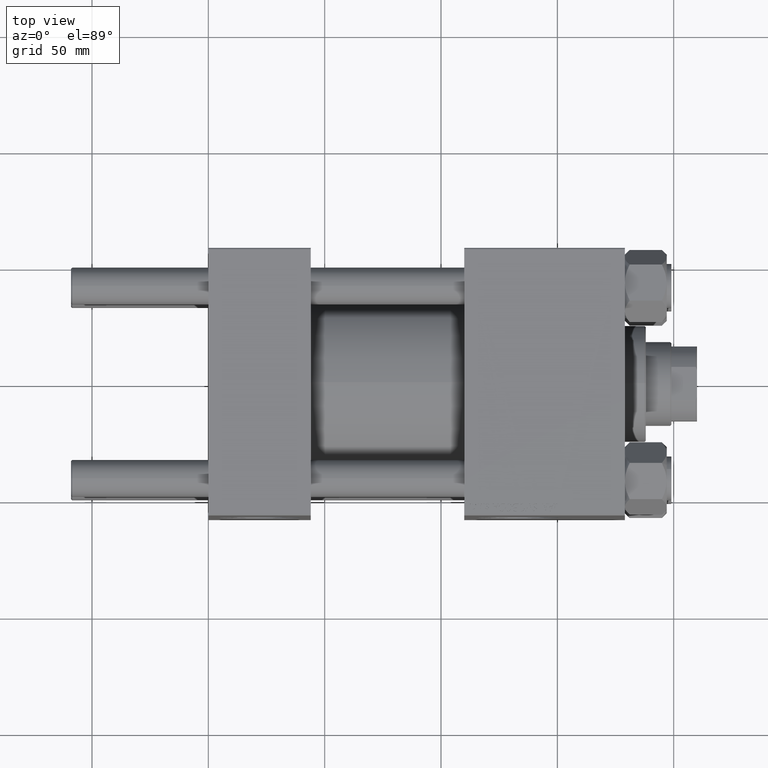
[diagram: clean part render]
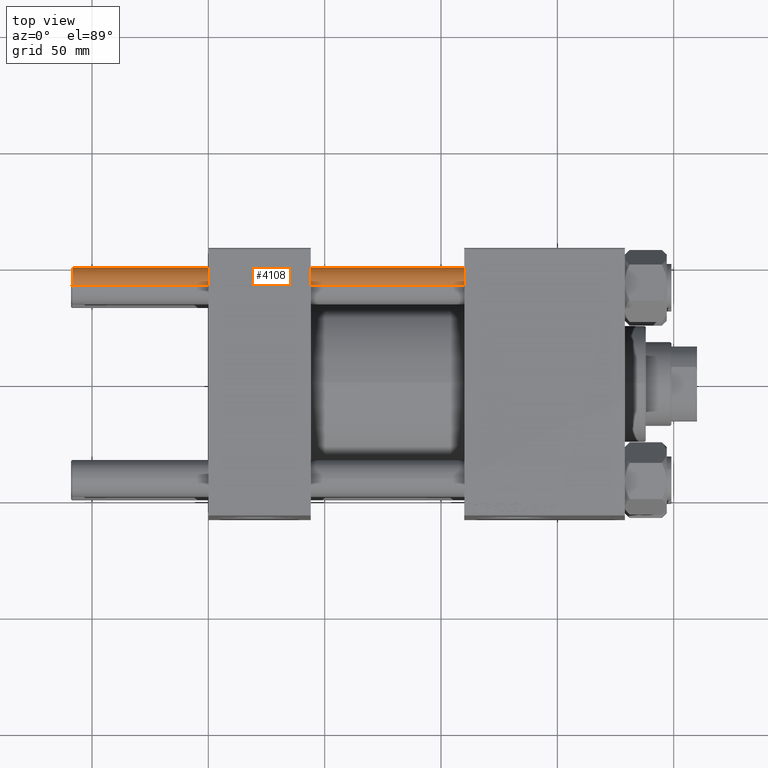
[diagram: same view with one face highlighted and labeled with its STEP entity id]
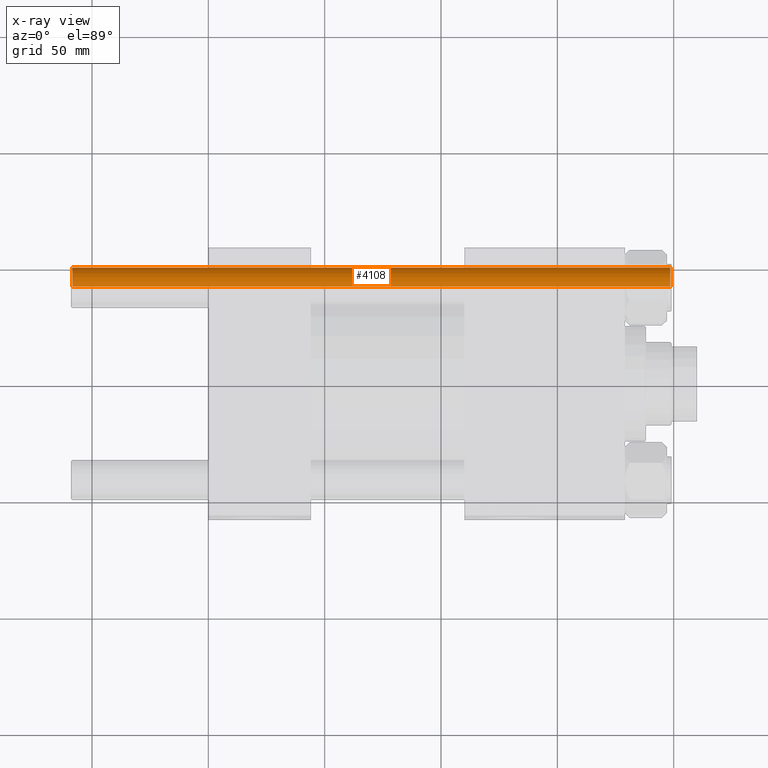
[diagram: x-ray of the same camera — body ghosted, the highlighted face saturated]
A machine part, top view. The second image highlights one B-rep face of the part: STEP entity #4108.
The next image is the same camera in x-ray: the body ghosted, the highlighted face saturated — about 0% of this face is hidden behind the body in this view.
In plain terms, the highlighted cylindrical surface (edge-blend (fillet) strip) has radius 8 mm, axis along (-1, -0, -0).
Its self-contained STEP definition (entity closure, byte-faithful):
#591 = DIRECTION ( 'NONE',  ( -0.000000000000000000, -0.000000000000000000, -1.000000000000000000 ) ) ;
#1505 = CARTESIAN_POINT ( 'NONE',  ( 8.000000000000000000, 9.797174393178825657E-16, 0.4999999999999449329 ) ) ;
#2602 = ORIENTED_EDGE ( 'NONE', *, *, #22292, .T. ) ;
#2763 = DIRECTION ( 'NONE',  ( 0.000000000000000000, 0.000000000000000000, -1.000000000000000000 ) ) ;
#4108 = ADVANCED_FACE ( 'NONE', ( #39374 ), #19978, .T. ) ;
#4132 = VECTOR ( 'NONE', #22811, 1000.000000000000000 ) ;
#5168 = DIRECTION ( 'NONE',  ( -1.000000000000000000, 0.000000000000000000, 0.000000000000000000 ) ) ;
#6074 = CARTESIAN_POINT ( 'NONE',  ( -8.000000000000000000, 0.000000000000000000, 258.0000000000000000 ) ) ;
#6361 = EDGE_CURVE ( 'NONE', #44144, #11092, #39335, .T. ) ;
#7006 = DIRECTION ( 'NONE',  ( 1.000000000000000000, 0.000000000000000000, 0.000000000000000000 ) ) ;
#8799 = VERTEX_POINT ( 'NONE', #1505 ) ;
#8853 = EDGE_CURVE ( 'NONE', #44144, #27923, #31282, .T. ) ;
#10908 = CARTESIAN_POINT ( 'NONE',  ( 0.000000000000000000, 0.000000000000000000, 257.4999999999999432 ) ) ;
#11092 = VERTEX_POINT ( 'NONE', #34333 ) ;
#11241 = CIRCLE ( 'NONE', #49578, 8.000000000000000000 ) ;
#15128 = ORIENTED_EDGE ( 'NONE', *, *, #8853, .T. ) ;
#19978 = CYLINDRICAL_SURFACE ( 'NONE', #46634, 8.000000000000000000 ) ;
#21970 = CARTESIAN_POINT ( 'NONE',  ( -8.000000000000000000, 0.000000000000000000, 257.4999999999999432 ) ) ;
#22292 = EDGE_CURVE ( 'NONE', #8799, #11092, #11241, .T. ) ;
#22351 = AXIS2_PLACEMENT_3D ( 'NONE', #10908, #2763, #38225 ) ;
#22565 = LINE ( 'NONE', #29964, #4132 ) ;
#22811 = DIRECTION ( 'NONE',  ( -0.000000000000000000, -0.000000000000000000, -1.000000000000000000 ) ) ;
#26393 = DIRECTION ( 'NONE',  ( -0.000000000000000000, -0.000000000000000000, 1.000000000000000000 ) ) ;
#27923 = VERTEX_POINT ( 'NONE', #49755 ) ;
#29964 = CARTESIAN_POINT ( 'NONE',  ( 8.000000000000000000, 9.797174393178825657E-16, 258.0000000000000000 ) ) ;
#31282 = CIRCLE ( 'NONE', #22351, 8.000000000000000000 ) ;
#32475 = ORIENTED_EDGE ( 'NONE', *, *, #49796, .T. ) ;
#33104 = ORIENTED_EDGE ( 'NONE', *, *, #6361, .F. ) ;
#34333 = CARTESIAN_POINT ( 'NONE',  ( -8.000000000000000000, 0.000000000000000000, 0.4999999999999449329 ) ) ;
#35546 = CARTESIAN_POINT ( 'NONE',  ( 0.000000000000000000, 0.000000000000000000, 258.0000000000000000 ) ) ;
#38225 = DIRECTION ( 'NONE',  ( 1.000000000000000000, 0.000000000000000000, 0.000000000000000000 ) ) ;
#38376 = CARTESIAN_POINT ( 'NONE',  ( 0.000000000000000000, 0.000000000000000000, 0.4999999999999449329 ) ) ;
#39335 = LINE ( 'NONE', #6074, #48336 ) ;
#39374 = FACE_OUTER_BOUND ( 'NONE', #50419, .T. ) ;
#44144 = VERTEX_POINT ( 'NONE', #21970 ) ;
#46634 = AXIS2_PLACEMENT_3D ( 'NONE', #35546, #591, #5168 ) ;
#46998 = DIRECTION ( 'NONE',  ( -0.000000000000000000, -0.000000000000000000, -1.000000000000000000 ) ) ;
#48336 = VECTOR ( 'NONE', #46998, 1000.000000000000000 ) ;
#49578 = AXIS2_PLACEMENT_3D ( 'NONE', #38376, #26393, #7006 ) ;
#49755 = CARTESIAN_POINT ( 'NONE',  ( 8.000000000000000000, 9.797174393178825657E-16, 257.4999999999999432 ) ) ;
#49796 = EDGE_CURVE ( 'NONE', #27923, #8799, #22565, .T. ) ;
#50419 = EDGE_LOOP ( 'NONE', ( #15128, #32475, #2602, #33104 ) ) ;